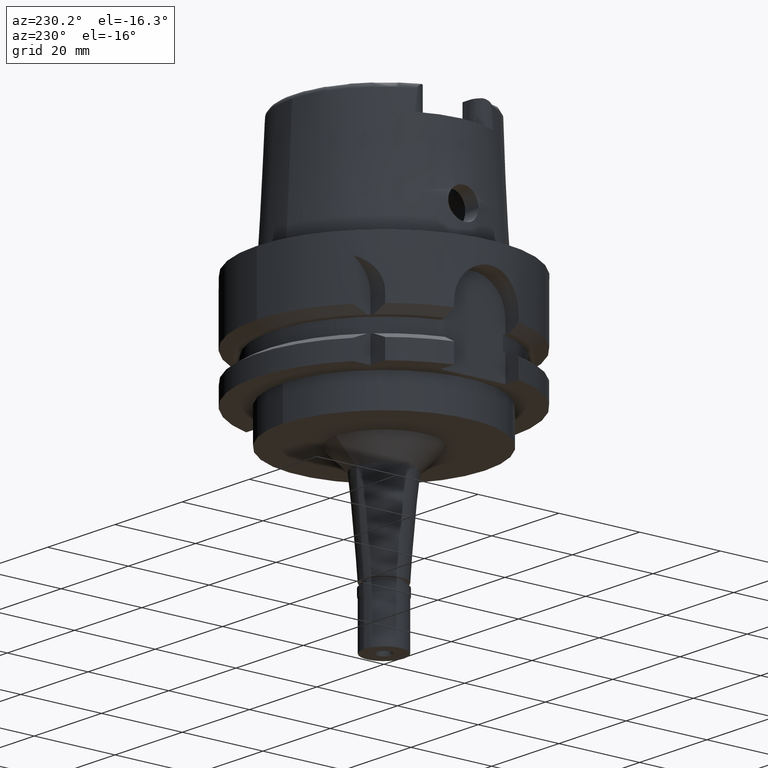
[diagram: clean part render]
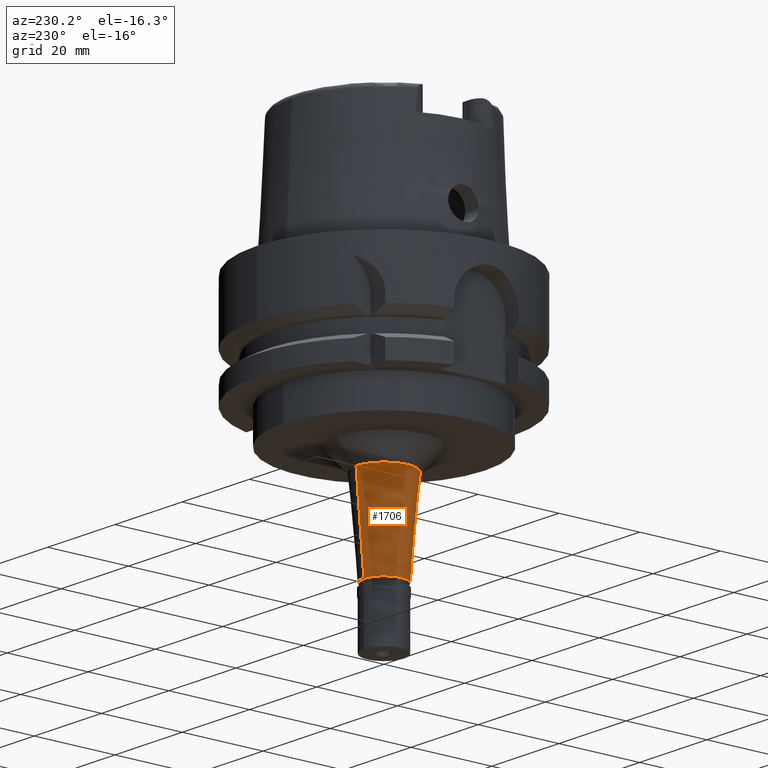
[diagram: same view with one face highlighted and labeled with its STEP entity id]
A machine part, auxiliary view. The second image highlights one B-rep face of the part: STEP entity #1706.
In plain terms, the highlighted conical surface has half-angle 5 deg.
Its self-contained STEP definition (entity closure, byte-faithful):
#25 = LINE ( 'NONE', #5232, #2023 ) ;
#172 = DIRECTION ( 'NONE',  ( 0.0000000000000000000, -0.08715574274765398866, -0.9961946980917458783 ) ) ;
#190 = AXIS2_PLACEMENT_3D ( 'NONE', #3339, #4620, #5071 ) ;
#449 = DIRECTION ( 'NONE',  ( 0.0000000000000000000, 1.000000000000000000, 0.0000000000000000000 ) ) ;
#935 = CIRCLE ( 'NONE', #3848, 6.924750597570000110 ) ;
#1192 = CIRCLE ( 'NONE', #4360, 5.000000000000000000 ) ;
#1568 = CARTESIAN_POINT ( 'NONE',  ( 0.0000000000000000000, 0.0000000000000000000, -39.00000000000000000 ) ) ;
#1706 = ADVANCED_FACE ( 'NONE', ( #4352 ), #4859, .T. ) ;
#1744 = CARTESIAN_POINT ( 'NONE',  ( 0.0000000000000000000, -5.000000000000000000, -61.00000000000000000 ) ) ;
#1784 = ORIENTED_EDGE ( 'NONE', *, *, #2706, .T. ) ;
#2023 = VECTOR ( 'NONE', #2613, 1000.000000000000000 ) ;
#2081 = ORIENTED_EDGE ( 'NONE', *, *, #5074, .T. ) ;
#2555 = VERTEX_POINT ( 'NONE', #4110 ) ;
#2613 = DIRECTION ( 'NONE',  ( 0.0000000000000000000, 0.08715574274765398866, -0.9961946980917458783 ) ) ;
#2706 = EDGE_CURVE ( 'NONE', #2555, #3170, #1192, .T. ) ;
#2739 = CARTESIAN_POINT ( 'NONE',  ( 0.0000000000000000000, 6.924750597570000110, -39.00000000000000000 ) ) ;
#2751 = VECTOR ( 'NONE', #172, 1000.000000000000000 ) ;
#2831 = VERTEX_POINT ( 'NONE', #2739 ) ;
#2873 = DIRECTION ( 'NONE',  ( 0.0000000000000000000, -1.000000000000000000, 0.0000000000000000000 ) ) ;
#3031 = CARTESIAN_POINT ( 'NONE',  ( 0.0000000000000000000, -6.924750597570000110, -39.00000000000000000 ) ) ;
#3146 = ORIENTED_EDGE ( 'NONE', *, *, #5142, .T. ) ;
#3170 = VERTEX_POINT ( 'NONE', #1744 ) ;
#3297 = DIRECTION ( 'NONE',  ( 0.0000000000000000000, 0.0000000000000000000, -1.000000000000000000 ) ) ;
#3339 = CARTESIAN_POINT ( 'NONE',  ( 0.0000000000000000000, 0.0000000000000000000, -50.00000000000000000 ) ) ;
#3682 = EDGE_CURVE ( 'NONE', #5498, #3170, #25, .T. ) ;
#3848 = AXIS2_PLACEMENT_3D ( 'NONE', #1568, #3297, #2873 ) ;
#3990 = ORIENTED_EDGE ( 'NONE', *, *, #3682, .F. ) ;
#4059 = LINE ( 'NONE', #5402, #2751 ) ;
#4110 = CARTESIAN_POINT ( 'NONE',  ( 0.0000000000000000000, 5.000000000000000000, -61.00000000000000000 ) ) ;
#4337 = DIRECTION ( 'NONE',  ( 0.0000000000000000000, 0.0000000000000000000, 1.000000000000000000 ) ) ;
#4352 = FACE_OUTER_BOUND ( 'NONE', #5187, .T. ) ;
#4360 = AXIS2_PLACEMENT_3D ( 'NONE', #4769, #4337, #449 ) ;
#4620 = DIRECTION ( 'NONE',  ( 0.0000000000000000000, 0.0000000000000000000, 1.000000000000000000 ) ) ;
#4769 = CARTESIAN_POINT ( 'NONE',  ( 0.0000000000000000000, 0.0000000000000000000, -61.00000000000000000 ) ) ;
#4859 = CONICAL_SURFACE ( 'NONE', #190, 5.962375298785000055, 0.08726646259969973729 ) ;
#5071 = DIRECTION ( 'NONE',  ( 0.0000000000000000000, 1.000000000000000000, 0.0000000000000000000 ) ) ;
#5074 = EDGE_CURVE ( 'NONE', #2831, #2555, #4059, .T. ) ;
#5142 = EDGE_CURVE ( 'NONE', #5498, #2831, #935, .T. ) ;
#5187 = EDGE_LOOP ( 'NONE', ( #1784, #3990, #3146, #2081 ) ) ;
#5232 = CARTESIAN_POINT ( 'NONE',  ( 0.0000000000000000000, -6.924750597570000110, -39.00000000000000000 ) ) ;
#5402 = CARTESIAN_POINT ( 'NONE',  ( 0.0000000000000000000, 6.924750597570000110, -39.00000000000000000 ) ) ;
#5498 = VERTEX_POINT ( 'NONE', #3031 ) ;